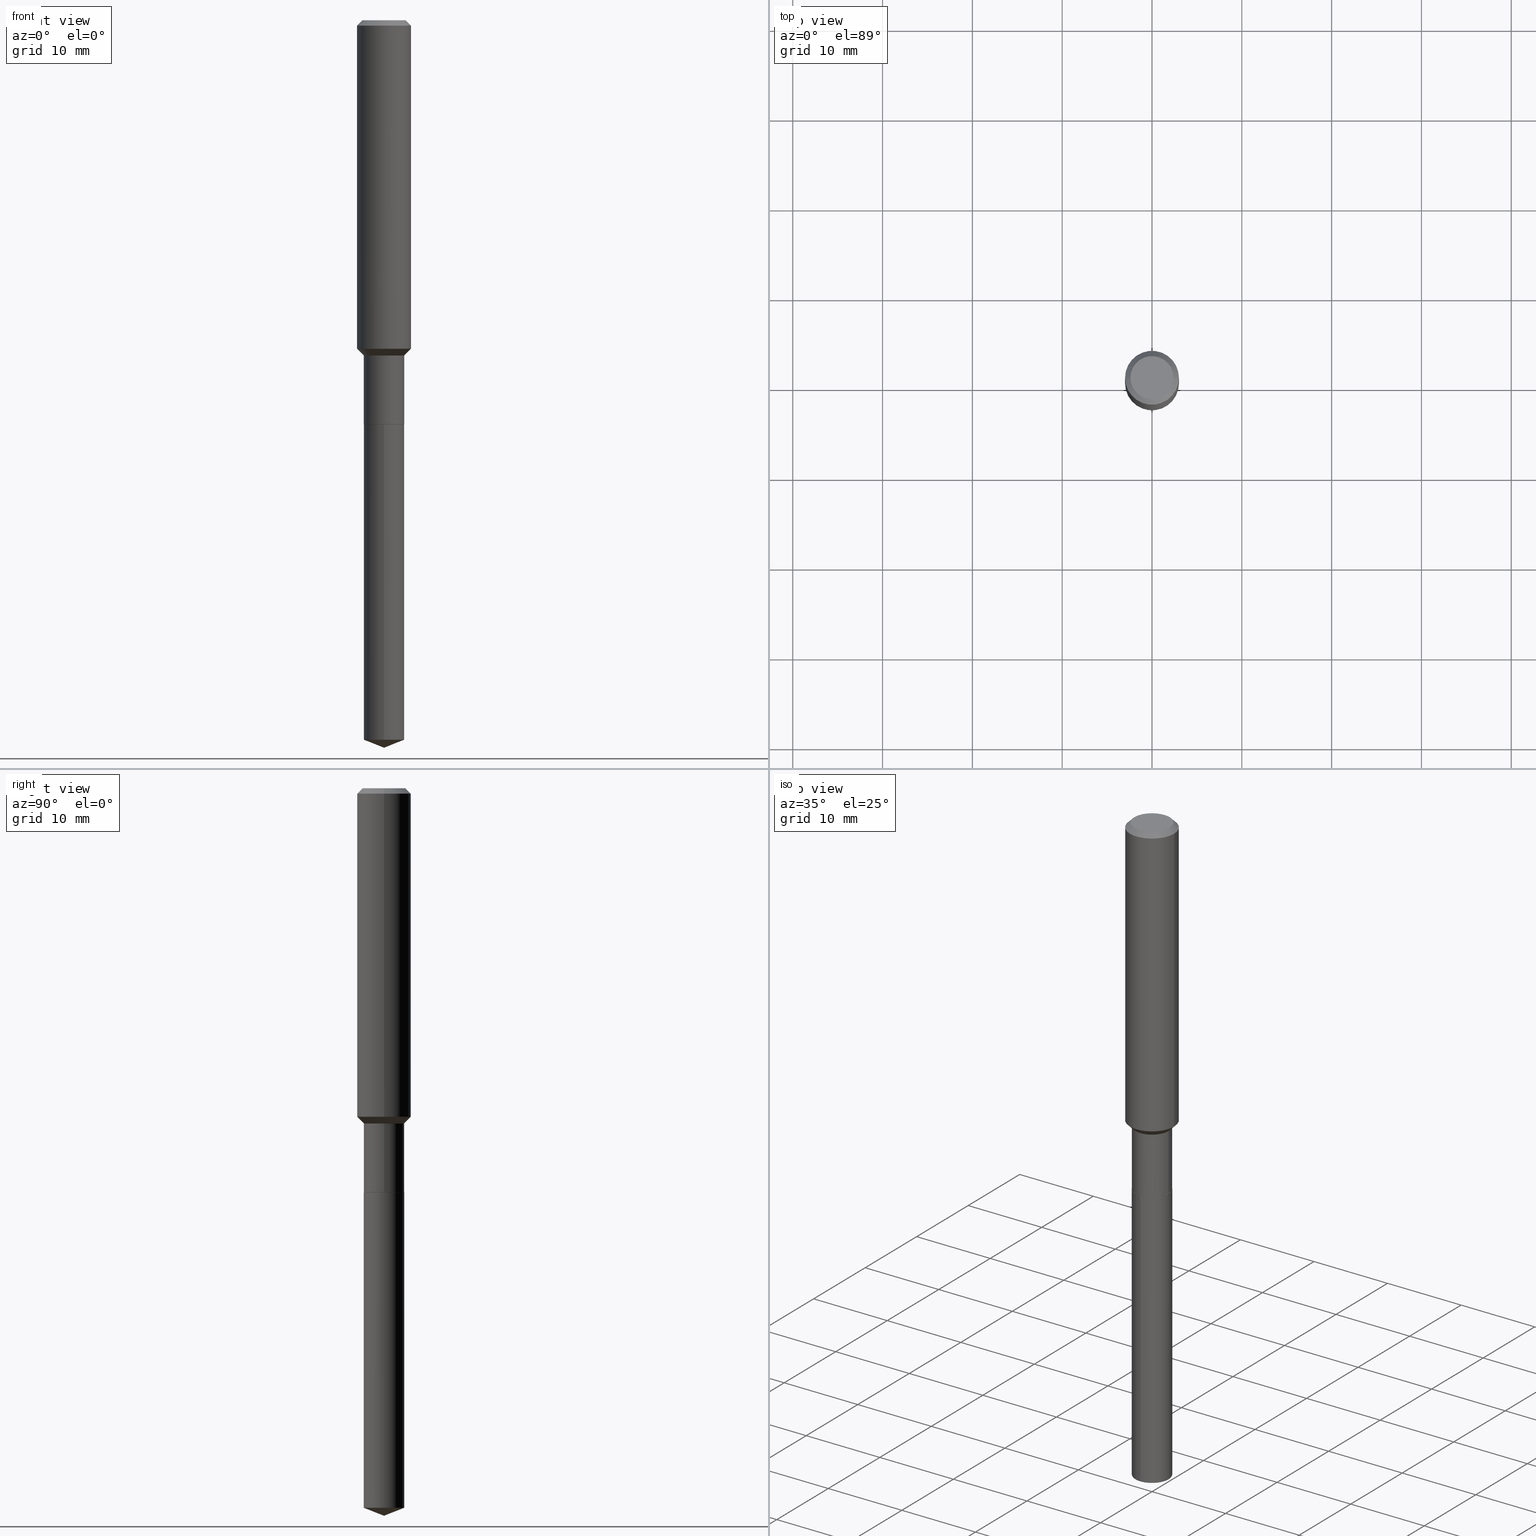
[diagram: canonical four-view strip — front | top / right | iso, engineering-drawing reading convention]
A machine part, canonical four-view strip (front | top / right | iso — engineering-drawing reading convention). The complete STEP part file that produces these views, byte-faithful:
ISO-10303-21;
HEADER;
FILE_DESCRIPTION (( 'STEP AP203' ),
    '1' );
FILE_NAME ('66621.STEP',
    '2024-04-25T02:12:49',
    ( '' ),
    ( '' ),
    'SwSTEP 2.0',
    'SolidWorks 2023',
    '' );
FILE_SCHEMA (( 'CONFIG_CONTROL_DESIGN' ));
ENDSEC;

DATA;
#1 = DIRECTION ( 'NONE',  ( -1.000000000000000000, 6.982962677686266711E-15, 0.000000000000000000 ) ) ;
#2 = LOCAL_TIME ( 22, 12, 49.00000000000000000, #15 ) ;
#3 = AXIS2_PLACEMENT_3D ( 'NONE', #20, #477, #321 ) ;
#4 = CIRCLE ( 'NONE', #142, 0.1181000000000001632 ) ;
#5 = ORIENTED_EDGE ( 'NONE', *, *, #447, .F. ) ;
#6 = DIRECTION ( 'NONE',  ( -2.445468806185136597E-29, 3.491481338843145583E-15, 1.000000000000000000 ) ) ;
#7 = ADVANCED_FACE ( 'NONE', ( #397 ), #177, .F. ) ;
#8 = AXIS2_PLACEMENT_3D ( 'NONE', #165, #414, #82 ) ;
#9 = APPROVAL_STATUS ( 'not_yet_approved' ) ;
#10 =( LENGTH_UNIT ( ) NAMED_UNIT ( * ) SI_UNIT ( $, .METRE. ) );
#11 = VERTEX_POINT ( 'NONE', #139 ) ;
#12 = CARTESIAN_POINT ( 'NONE',  ( -6.186904932429597627E-16, -0.08860000000000617382, -1.771700000000000053 ) ) ;
#13 = VERTEX_POINT ( 'NONE', #137 ) ;
#14 = DATE_AND_TIME ( #304, #269 ) ;
#15 = COORDINATED_UNIVERSAL_TIME_OFFSET ( 5, 0, .BEHIND. ) ;
#16 = FACE_OUTER_BOUND ( 'NONE', #478, .T. ) ;
#17 = VECTOR ( 'NONE', #431, 39.37007874015748143 ) ;
#18 = CYLINDRICAL_SURFACE ( 'NONE', #186, 0.1181000000000000799 ) ;
#19 = CIRCLE ( 'NONE', #453, 0.08859999999999999820 ) ;
#20 = CARTESIAN_POINT ( 'NONE',  ( 3.593616410689059139E-29, -5.130731827430003304E-15, -1.469500000000000250 ) ) ;
#21 = ORIENTED_EDGE ( 'NONE', *, *, #392, .F. ) ;
#22 = DIRECTION ( 'NONE',  ( -2.445468806185136597E-29, 3.491481338843145583E-15, 1.000000000000000000 ) ) ;
#23 = ADVANCED_FACE ( 'NONE', ( #282 ), #324, .T. ) ;
#24 = CARTESIAN_POINT ( 'NONE',  ( -0.1181000000000000799, 8.391509709326788873E-16, -5.809262341591047988E-30 ) ) ;
#25 = DIRECTION ( 'NONE',  ( -2.438088387897960049E-29, 3.491481338843145188E-15, 1.000000000000000000 ) ) ;
#26 = AXIS2_PLACEMENT_3D ( 'NONE', #482, #249, #257 ) ;
#27 = AXIS2_PLACEMENT_3D ( 'NONE', #436, #65, #212 ) ;
#28 = APPROVAL ( #489, 'UNSPECIFIED' ) ;
#29 = LOCAL_TIME ( 22, 12, 49.00000000000000000, #319 ) ;
#30 = ORIENTED_EDGE ( 'NONE', *, *, #455, .F. ) ;
#31 = ADVANCED_FACE ( 'NONE', ( #458 ), #151, .T. ) ;
#32 = DATE_AND_TIME ( #39, #470 ) ;
#33 = VERTEX_POINT ( 'NONE', #147 ) ;
#34 = CONICAL_SURFACE ( 'NONE', #295, 0.1180999999999999966, 0.7853981633974460586 ) ;
#35 = CARTESIAN_POINT ( 'NONE',  ( 5.776197320209327532E-31, -8.246878922347559293E-17, -0.02362000000000014088 ) ) ;
#36 = CARTESIAN_POINT ( 'NONE',  ( 0.000000000000000000, 0.000000000000000000, 0.000000000000000000 ) ) ;
#37 = CARTESIAN_POINT ( 'NONE',  ( -0.08809999999999999776, -5.557220110649644295E-15, -1.771700000000000719 ) ) ;
#38 = EDGE_CURVE ( 'NONE', #404, #202, #233, .T. ) ;
#39 = CALENDAR_DATE ( 2024, 24, 4 ) ;
#40 = ORGANIZATION ( 'UNSPECIFIED', 'UNSPECIFIED', '' ) ;
#41 = CIRCLE ( 'NONE', #452, 0.08859999999999999820 ) ;
#42 = DIRECTION ( 'NONE',  ( 2.445468806185136597E-29, -3.491481338843145583E-15, -1.000000000000000000 ) ) ;
#43 = DESIGN_CONTEXT ( 'detailed design', #57, 'design' ) ;
#44 = ADVANCED_FACE ( 'NONE', ( #410 ), #375, .T. ) ;
#45 = APPROVAL_DATE_TIME ( #32, #28 ) ;
#46 = CYLINDRICAL_SURFACE ( 'NONE', #123, 0.08859999999999998432 ) ;
#47 = ORIENTED_EDGE ( 'NONE', *, *, #392, .T. ) ;
#48 = DIRECTION ( 'NONE',  ( -2.445468806185136597E-29, 3.491481338843145583E-15, 1.000000000000000000 ) ) ;
#49 = AXIS2_PLACEMENT_3D ( 'NONE', #298, #292, #450 ) ;
#50 = CONICAL_SURFACE ( 'NONE', #191, 0.08809999999999999776, 0.7853981633972775267 ) ;
#51 = ORIENTED_EDGE ( 'NONE', *, *, #160, .T. ) ;
#52 = CARTESIAN_POINT ( 'NONE',  ( 4.716267017698007905E-46, -6.733579360998555036E-32, -1.928573779297252010E-17 ) ) ;
#53 = EDGE_CURVE ( 'NONE', #13, #439, #99, .T. ) ;
#54 = LINE ( 'NONE', #330, #336 ) ;
#55 = EDGE_LOOP ( 'NONE', ( #121, #51, #155, #232 ) ) ;
#56 = DIRECTION ( 'NONE',  ( 6.982962677686265922E-15, 1.000000000000000000, -3.491438453366782686E-15 ) ) ;
#57 = APPLICATION_CONTEXT ( 'configuration controlled 3d designs of mechanical parts and assemblies' ) ;
#58 = CARTESIAN_POINT ( 'NONE',  ( 3.593616410689059139E-29, -5.130731827430003304E-15, -1.469500000000000250 ) ) ;
#59 = CONICAL_SURFACE ( 'NONE', #178, 0.08859999999999995657, 0.7853981633974509435 ) ;
#60 = DIRECTION ( 'NONE',  ( -2.445468806185136877E-29, 3.491481338843145188E-15, 1.000000000000000000 ) ) ;
#61 = DATE_TIME_ROLE ( 'classification_date' ) ;
#62 = SECURITY_CLASSIFICATION_LEVEL ( 'unclassified' ) ;
#63 = ADVANCED_FACE ( 'NONE', ( #484 ), #107, .T. ) ;
#64 = DIRECTION ( 'NONE',  ( 2.438088387897960049E-29, -3.491481338843145188E-15, -1.000000000000000000 ) ) ;
#65 = DIRECTION ( 'NONE',  ( -2.445468806185136597E-29, 3.491481338843145583E-15, 1.000000000000000000 ) ) ;
#66 = ORIENTED_EDGE ( 'NONE', *, *, #421, .F. ) ;
#67 = CARTESIAN_POINT ( 'NONE',  ( 6.295408638835256658E-16, 0.08859999999998896536, -3.154099531860517391 ) ) ;
#68 = APPROVAL ( #9, 'UNSPECIFIED' ) ;
#69 = ORIENTED_EDGE ( 'NONE', *, *, #228, .T. ) ;
#70 = AXIS2_PLACEMENT_3D ( 'NONE', #171, #25, #280 ) ;
#71 = ADVANCED_FACE ( 'NONE', ( #213 ), #18, .T. ) ;
#72 = ORIENTED_EDGE ( 'NONE', *, *, #486, .F. ) ;
#73 = EDGE_CURVE ( 'NONE', #439, #11, #219, .T. ) ;
#74 = ORIENTED_EDGE ( 'NONE', *, *, #53, .F. ) ;
#75 = FACE_OUTER_BOUND ( 'NONE', #382, .T. ) ;
#76 = LENGTH_MEASURE_WITH_UNIT ( LENGTH_MEASURE( 0.02539999999999999897 ), #10 );
#77 = CYLINDRICAL_SURFACE ( 'NONE', #303, 0.08859999999999999820 ) ;
#78 = CIRCLE ( 'NONE', #27, 0.08809999999999999776 ) ;
#79 = ORIENTED_EDGE ( 'NONE', *, *, #466, .T. ) ;
#80 =( NAMED_UNIT ( * ) SI_UNIT ( $, .STERADIAN. ) SOLID_ANGLE_UNIT ( ) );
#81 = CARTESIAN_POINT ( 'NONE',  ( -6.186904932429258417E-16, -0.08860000000001097553, -3.154099531860516059 ) ) ;
#82 = DIRECTION ( 'NONE',  ( 1.000000000000000000, -6.982962677686266711E-15, 0.000000000000000000 ) ) ;
#83 = EDGE_CURVE ( 'NONE', #390, #11, #345, .T. ) ;
#84 = AXIS2_PLACEMENT_3D ( 'NONE', #104, #64, #174 ) ;
#85 = PERSON_AND_ORGANIZATION_ROLE ( 'design_owner' ) ;
#86 = PRODUCT_DEFINITION ( 'UNKNOWN', '', #443, #43 ) ;
#87 = ORIENTED_EDGE ( 'NONE', *, *, #203, .T. ) ;
#88 = ORIENTED_EDGE ( 'NONE', *, *, #449, .T. ) ;
#89 = AXIS2_PLACEMENT_3D ( 'NONE', #36, #289, #277 ) ;
#90 = SECURITY_CLASSIFICATION ( '', '', #62 ) ;
#91 = EDGE_CURVE ( 'NONE', #162, #311, #469, .T. ) ;
#92 = PERSON_AND_ORGANIZATION ( #385, #40 ) ;
#93 = CARTESIAN_POINT ( 'NONE',  ( -6.186904932429597627E-16, -0.08860000000000617382, -1.771700000000000053 ) ) ;
#94 = CARTESIAN_POINT ( 'NONE',  ( 0.08859999999999998432, -6.186904932430030515E-16, 4.320292623355198064E-30 ) ) ;
#95 = EDGE_LOOP ( 'NONE', ( #360, #461, #259 ) ) ;
#96 = DIRECTION ( 'NONE',  ( -2.445498752953222356E-29, 3.491438453366782686E-15, 1.000000000000000000 ) ) ;
#97 = CARTESIAN_POINT ( 'NONE',  ( 0.000000000000000000, 0.000000000000000000, 0.000000000000000000 ) ) ;
#98 = CARTESIAN_POINT ( 'NONE',  ( 0.000000000000000000, 0.000000000000000000, 0.000000000000000000 ) ) ;
#99 = LINE ( 'NONE', #448, #184 ) ;
#100 = VERTEX_POINT ( 'NONE', #314 ) ;
#101 = LINE ( 'NONE', #93, #362 ) ;
#102 = ORIENTED_EDGE ( 'NONE', *, *, #149, .F. ) ;
#103 = PLANE ( 'NONE',  #70 ) ;
#104 = CARTESIAN_POINT ( 'NONE',  ( 2.358133508849003952E-46, -3.366789680499277518E-32, -9.642868896486260050E-18 ) ) ;
#105 = ORIENTED_EDGE ( 'NONE', *, *, #83, .F. ) ;
#106 =( GEOMETRIC_REPRESENTATION_CONTEXT ( 3 ) GLOBAL_UNCERTAINTY_ASSIGNED_CONTEXT ( ( #206 ) ) GLOBAL_UNIT_ASSIGNED_CONTEXT ( ( #329, #374, #80 ) ) REPRESENTATION_CONTEXT ( 'NONE', 'WORKASPACE' ) );
#107 = CONICAL_SURFACE ( 'NONE', #159, 99.94676754583984746, 1.195550537616119069 ) ;
#108 = CC_DESIGN_SECURITY_CLASSIFICATION ( #90, ( #443 ) ) ;
#109 = DIRECTION ( 'NONE',  ( -2.445468806185136597E-29, 3.491481338843145583E-15, 1.000000000000000000 ) ) ;
#110 = CARTESIAN_POINT ( 'NONE',  ( 3.593616410689059139E-29, -5.130731827430003304E-15, -1.469500000000000250 ) ) ;
#111 = ADVANCED_FACE ( 'NONE', ( #457 ), #34, .T. ) ;
#112 = ORIENTED_EDGE ( 'NONE', *, *, #118, .T. ) ;
#113 = DIRECTION ( 'NONE',  ( 1.000000000000000000, -6.982962677686261189E-15, 0.000000000000000000 ) ) ;
#114 = VECTOR ( 'NONE', #377, 39.37007874015748143 ) ;
#115 = PERSON_AND_ORGANIZATION_ROLE ( 'creator' ) ;
#116 = CC_DESIGN_PERSON_AND_ORGANIZATION_ASSIGNMENT ( #344, #437, ( #443 ) ) ;
#117 = ORIENTED_EDGE ( 'NONE', *, *, #286, .T. ) ;
#118 = EDGE_CURVE ( 'NONE', #266, #475, #194, .T. ) ;
#119 = CLOSED_SHELL ( 'NONE', ( #23, #31, #63, #192, #302 ) ) ;
#120 = CONICAL_SURFACE ( 'NONE', #222, 0.1180999999999999966, 0.7853981633974460586 ) ;
#121 = ORIENTED_EDGE ( 'NONE', *, *, #228, .F. ) ;
#122 = APPLICATION_CONTEXT ( 'configuration controlled 3d designs of mechanical parts and assemblies' ) ;
#123 = AXIS2_PLACEMENT_3D ( 'NONE', #460, #230, #400 ) ;
#124 = DIRECTION ( 'NONE',  ( -2.445468806185136597E-29, 3.491481338843145583E-15, 1.000000000000000000 ) ) ;
#125 = ORIENTED_EDGE ( 'NONE', *, *, #415, .T. ) ;
#126 = CARTESIAN_POINT ( 'NONE',  ( 4.716267017698007905E-46, -6.733579360998555036E-32, -1.928573779297252010E-17 ) ) ;
#127 = DIRECTION ( 'NONE',  ( -6.982962677686265133E-15, -1.000000000000000000, 3.083349879982238325E-15 ) ) ;
#128 = CALENDAR_DATE ( 2024, 24, 4 ) ;
#129 = LINE ( 'NONE', #430, #234 ) ;
#130 = EDGE_CURVE ( 'NONE', #435, #279, #54, .T. ) ;
#131 = CALENDAR_DATE ( 2024, 24, 4 ) ;
#132 = DIRECTION ( 'NONE',  ( 1.000000000000000000, -6.982962677686269077E-15, 0.000000000000000000 ) ) ;
#133 = ORIENTED_EDGE ( 'NONE', *, *, #160, .F. ) ;
#134 = DIRECTION ( 'NONE',  ( -2.445498752953222356E-29, 3.491438453366782686E-15, 1.000000000000000000 ) ) ;
#135 = CARTESIAN_POINT ( 'NONE',  ( 0.08859999999999995657, -5.749422320673005468E-15, -1.469500000000000250 ) ) ;
#136 = PERSON_AND_ORGANIZATION ( #385, #40 ) ;
#137 = CARTESIAN_POINT ( 'NONE',  ( 0.08809999999999999776, -6.801056499932562605E-15, -1.771700000000000719 ) ) ;
#138 = CARTESIAN_POINT ( 'NONE',  ( 0.09447999999999998066, -7.704367267948738690E-16, -1.928573779296752193E-17 ) ) ;
#139 = CARTESIAN_POINT ( 'NONE',  ( -0.08859999999999999820, -5.027880923511043773E-15, -1.771200000000000552 ) ) ;
#140 = DIRECTION ( 'NONE',  ( -2.445498752953222356E-29, 3.491438453366782686E-15, 1.000000000000000000 ) ) ;
#141 = ORIENTED_EDGE ( 'NONE', *, *, #83, .T. ) ;
#142 = AXIS2_PLACEMENT_3D ( 'NONE', #346, #342, #462 ) ;
#143 = FACE_OUTER_BOUND ( 'NONE', #467, .T. ) ;
#144 = DIRECTION ( 'NONE',  ( 1.000000000000000000, 0.000000000000000000, 0.000000000000000000 ) ) ;
#145 = FACE_OUTER_BOUND ( 'NONE', #483, .T. ) ;
#146 = DIRECTION ( 'NONE',  ( -2.445498752953222356E-29, 3.491438453366782686E-15, 1.000000000000000000 ) ) ;
#147 = CARTESIAN_POINT ( 'NONE',  ( 6.295408638835258631E-16, 0.08859999999999380871, -1.771700000000000719 ) ) ;
#148 = EDGE_LOOP ( 'NONE', ( #183, #87, #79, #224 ) ) ;
#149 = EDGE_CURVE ( 'NONE', #202, #33, #367, .T. ) ;
#150 = AXIS2_PLACEMENT_3D ( 'NONE', #35, #190, #158 ) ;
#151 = CONICAL_SURFACE ( 'NONE', #417, 99.94676754583984746, 1.195550537616119069 ) ;
#152 = CARTESIAN_POINT ( 'NONE',  ( -8.848083599624647937E-28, 1.263239336174787439E-13, 36.18107874015748138 ) ) ;
#153 = AXIS2_PLACEMENT_3D ( 'NONE', #52, #124, #310 ) ;
#154 = APPLICATION_PROTOCOL_DEFINITION ( 'international standard', 'config_control_design', 1994, #122 ) ;
#155 = ORIENTED_EDGE ( 'NONE', *, *, #91, .T. ) ;
#156 = DIRECTION ( 'NONE',  ( 1.000000000000000000, -6.982962677686264344E-15, 0.000000000000000000 ) ) ;
#157 = CARTESIAN_POINT ( 'NONE',  ( -0.08859999999999995657, -4.501190963546554453E-15, -1.469500000000000250 ) ) ;
#158 = DIRECTION ( 'NONE',  ( 1.000000000000000000, -6.982962677686266711E-15, 0.000000000000000000 ) ) ;
#159 = AXIS2_PLACEMENT_3D ( 'NONE', #152, #140, #250 ) ;
#160 = EDGE_CURVE ( 'NONE', #245, #162, #334, .T. ) ;
#161 = FACE_OUTER_BOUND ( 'NONE', #148, .T. ) ;
#162 = VERTEX_POINT ( 'NONE', #253 ) ;
#163 = DIRECTION ( 'NONE',  ( 1.000000000000000000, -6.982962677686261189E-15, 0.000000000000000000 ) ) ;
#164 = APPROVAL_PERSON_ORGANIZATION ( #92, #231, #199 ) ;
#165 = CARTESIAN_POINT ( 'NONE',  ( 5.776197320209327532E-31, -8.246878922347559293E-17, -0.02362000000000014088 ) ) ;
#166 = AXIS2_PLACEMENT_3D ( 'NONE', #58, #472, #163 ) ;
#167 = ADVANCED_FACE ( 'NONE', ( #143 ), #120, .T. ) ;
#168 = CARTESIAN_POINT ( 'NONE',  ( 0.08859999999999999820, -6.802802240601984897E-15, -1.771200000000000552 ) ) ;
#169 = VECTOR ( 'NONE', #185, 39.37007874015748143 ) ;
#170 = ORIENTED_EDGE ( 'NONE', *, *, #294, .T. ) ;
#171 = CARTESIAN_POINT ( 'NONE',  ( 4.963550481035897512E-30, -1.167963171092849137E-14, -1.771700000000000719 ) ) ;
#172 = EDGE_LOOP ( 'NONE', ( #105, #454, #325, #451 ) ) ;
#173 = FACE_OUTER_BOUND ( 'NONE', #172, .T. ) ;
#174 = DIRECTION ( 'NONE',  ( -1.000000000000000000, 6.982962677686265922E-15, -4.876176775795935793E-29 ) ) ;
#175 = DIRECTION ( 'NONE',  ( -6.982962677686265133E-15, -1.000000000000000000, 6.166699759964476650E-15 ) ) ;
#176 = DIRECTION ( 'NONE',  ( 6.611014441532066589E-15, 0.9304175679820270162, 0.3665012267242909183 ) ) ;
#177 = PLANE ( 'NONE',  #84 ) ;
#178 = AXIS2_PLACEMENT_3D ( 'NONE', #110, #6, #113 ) ;
#179 = DIRECTION ( 'NONE',  ( 2.445498752953222076E-29, -3.491438453366782686E-15, -1.000000000000000000 ) ) ;
#180 = ORIENTED_EDGE ( 'NONE', *, *, #332, .F. ) ;
#181 = CARTESIAN_POINT ( 'NONE',  ( 6.295408638834919420E-16, 0.08859999999999380871, -1.771700000000000719 ) ) ;
#182 = APPROVAL_ROLE ( '' ) ;
#183 = ORIENTED_EDGE ( 'NONE', *, *, #415, .F. ) ;
#184 = VECTOR ( 'NONE', #256, 39.37007874015748143 ) ;
#185 = DIRECTION ( 'NONE',  ( -2.445468806185136877E-29, 3.491481338843145188E-15, 1.000000000000000000 ) ) ;
#186 = AXIS2_PLACEMENT_3D ( 'NONE', #97, #109, #373 ) ;
#187 = DIRECTION ( 'NONE',  ( -2.445468806185136597E-29, 3.491481338843145583E-15, 1.000000000000000000 ) ) ;
#188 = ORIENTED_EDGE ( 'NONE', *, *, #73, .T. ) ;
#189 = COORDINATED_UNIVERSAL_TIME_OFFSET ( 5, 0, .BEHIND. ) ;
#190 = DIRECTION ( 'NONE',  ( -2.445468806185136597E-29, 3.491481338843145583E-15, 1.000000000000000000 ) ) ;
#191 = AXIS2_PLACEMENT_3D ( 'NONE', #331, #223, #156 ) ;
#192 = ADVANCED_FACE ( 'NONE', ( #145 ), #77, .T. ) ;
#193 = APPLICATION_PROTOCOL_DEFINITION ( 'international standard', 'config_control_design', 1994, #57 ) ;
#194 = LINE ( 'NONE', #157, #241 ) ;
#195 = DATE_TIME_ROLE ( 'creation_date' ) ;
#196 = ADVANCED_FACE ( 'NONE', ( #16 ), #103, .F. ) ;
#197 = AXIS2_PLACEMENT_3D ( 'NONE', #468, #271, #208 ) ;
#198 = AXIS2_PLACEMENT_3D ( 'NONE', #98, #407, #481 ) ;
#199 = APPROVAL_ROLE ( '' ) ;
#200 = VERTEX_POINT ( 'NONE', #12 ) ;
#201 = CC_DESIGN_PERSON_AND_ORGANIZATION_ASSIGNMENT ( #136, #434, ( #90 ) ) ;
#202 = VERTEX_POINT ( 'NONE', #67 ) ;
#203 = EDGE_CURVE ( 'NONE', #11, #439, #227, .T. ) ;
#204 = ORIENTED_EDGE ( 'NONE', *, *, #322, .T. ) ;
#205 = CARTESIAN_POINT ( 'NONE',  ( -0.1180999999999999966, -1.715949987646123475E-15, -0.02362000000000014088 ) ) ;
#206 = UNCERTAINTY_MEASURE_WITH_UNIT (LENGTH_MEASURE( 1.000000000000000082E-05 ), #329, 'distance_accuracy_value', 'NONE');
#207 = AXIS2_PLACEMENT_3D ( 'NONE', #391, #240, #426 ) ;
#208 = DIRECTION ( 'NONE',  ( 1.000000000000000000, -6.982962677686263555E-15, 0.000000000000000000 ) ) ;
#209 = LINE ( 'NONE', #356, #290 ) ;
#210 = PERSON_AND_ORGANIZATION ( #385, #40 ) ;
#211 = EDGE_LOOP ( 'NONE', ( #485, #293, #429, #337 ) ) ;
#212 = DIRECTION ( 'NONE',  ( 1.000000000000000000, -6.982962677686264344E-15, 0.000000000000000000 ) ) ;
#213 = FACE_OUTER_BOUND ( 'NONE', #242, .T. ) ;
#214 = FACE_OUTER_BOUND ( 'NONE', #368, .T. ) ;
#215 = ORIENTED_EDGE ( 'NONE', *, *, #455, .T. ) ;
#216 = FACE_OUTER_BOUND ( 'NONE', #442, .T. ) ;
#217 = ADVANCED_FACE ( 'NONE', ( #276 ), #268, .T. ) ;
#218 = CC_DESIGN_APPROVAL ( #68, ( #443 ) ) ;
#219 = CIRCLE ( 'NONE', #349, 0.08859999999999999820 ) ;
#220 = ORIENTED_EDGE ( 'NONE', *, *, #447, .T. ) ;
#221 = DIRECTION ( 'NONE',  ( -6.982962677686265922E-15, -1.000000000000000000, 3.498627837350008561E-15 ) ) ;
#222 = AXIS2_PLACEMENT_3D ( 'NONE', #445, #369, #1 ) ;
#223 = DIRECTION ( 'NONE',  ( -2.445468806185136597E-29, 3.491481338843145583E-15, 1.000000000000000000 ) ) ;
#224 = ORIENTED_EDGE ( 'NONE', *, *, #318, .F. ) ;
#225 = FACE_OUTER_BOUND ( 'NONE', #211, .T. ) ;
#226 = DIRECTION ( 'NONE',  ( 1.000000000000000000, -6.982962677686261189E-15, 0.000000000000000000 ) ) ;
#227 = CIRCLE ( 'NONE', #381, 0.08859999999999999820 ) ;
#228 = EDGE_CURVE ( 'NONE', #245, #320, #418, .T. ) ;
#229 = DATE_AND_TIME ( #128, #2 ) ;
#230 = DIRECTION ( 'NONE',  ( -2.445468806185136597E-29, 3.491481338843145583E-15, 1.000000000000000000 ) ) ;
#231 = APPROVAL ( #384, 'UNSPECIFIED' ) ;
#232 = ORIENTED_EDGE ( 'NONE', *, *, #449, .F. ) ;
#233 = CIRCLE ( 'NONE', #49, 0.08859999999999999820 ) ;
#234 = VECTOR ( 'NONE', #433, 39.37007874015748143 ) ;
#235 = VECTOR ( 'NONE', #471, 39.37007874015748143 ) ;
#236 = ORIENTED_EDGE ( 'NONE', *, *, #254, .F. ) ;
#237 = DIMENSIONAL_EXPONENTS ( 1.000000000000000000, 0.000000000000000000, 0.000000000000000000, 0.000000000000000000, 0.000000000000000000, 0.000000000000000000, 0.000000000000000000 ) ;
#238 = DIRECTION ( 'NONE',  ( 1.000000000000000000, -6.982962677686267499E-15, 4.875432709231658792E-29 ) ) ;
#239 = CARTESIAN_POINT ( 'NONE',  ( -0.08809999999999999776, -5.559869337823754707E-15, -1.771700000000000719 ) ) ;
#240 = DIRECTION ( 'NONE',  ( -2.445468806185136597E-29, 3.491481338843145583E-15, 1.000000000000000000 ) ) ;
#241 = VECTOR ( 'NONE', #261, 39.37007874015748143 ) ;
#242 = EDGE_LOOP ( 'NONE', ( #394, #357, #343, #21 ) ) ;
#243 = CARTESIAN_POINT ( 'NONE',  ( 4.332637083918206987E-29, -6.185857488028401870E-15, -1.771700000000000497 ) ) ;
#244 = EDGE_CURVE ( 'NONE', #100, #404, #129, .T. ) ;
#245 = VERTEX_POINT ( 'NONE', #138 ) ;
#246 = PRODUCT_DEFINITION_SHAPE ( 'NONE', 'NONE',  #86 ) ;
#247 = DIRECTION ( 'NONE',  ( 1.000000000000000000, -6.982962677686264344E-15, 0.000000000000000000 ) ) ;
#248 = LINE ( 'NONE', #24, #17 ) ;
#249 = DIRECTION ( 'NONE',  ( -2.445498752953222356E-29, 3.491438453366782686E-15, 1.000000000000000000 ) ) ;
#250 = DIRECTION ( 'NONE',  ( -6.982962677686265922E-15, -1.000000000000000000, 3.498627837350008561E-15 ) ) ;
#251 = VECTOR ( 'NONE', #315, 39.37007874015748143 ) ;
#252 = EDGE_LOOP ( 'NONE', ( #265, #432, #30, #419 ) ) ;
#253 = CARTESIAN_POINT ( 'NONE',  ( 0.1180999999999999966, -9.071566814582237199E-16, -0.02362000000000014088 ) ) ;
#254 = EDGE_CURVE ( 'NONE', #202, #404, #41, .T. ) ;
#255 = CC_DESIGN_PERSON_AND_ORGANIZATION_ASSIGNMENT ( #440, #85, ( #399 ) ) ;
#256 = DIRECTION ( 'NONE',  ( 0.7071067811864267805, -2.468850131080992517E-15, 0.7071067811866682540 ) ) ;
#257 = DIRECTION ( 'NONE',  ( -6.982962677686265133E-15, -1.000000000000000000, 3.083349879982238325E-15 ) ) ;
#258 = CLOSED_SHELL ( 'NONE', ( #405, #111, #44, #217, #353, #338, #387, #71, #167, #7, #196, #272 ) ) ;
#259 = ORIENTED_EDGE ( 'NONE', *, *, #38, .F. ) ;
#260 = AXIS2_PLACEMENT_3D ( 'NONE', #428, #354, #127 ) ;
#261 = DIRECTION ( 'NONE',  ( -0.7071067811865493491, 7.493145998870360471E-15, 0.7071067811865456854 ) ) ;
#262 = CIRCLE ( 'NONE', #150, 0.1180999999999999966 ) ;
#263 = ORIENTED_EDGE ( 'NONE', *, *, #372, .F. ) ;
#264 = SHAPE_DEFINITION_REPRESENTATION ( #246, #409 ) ;
#265 = ORIENTED_EDGE ( 'NONE', *, *, #38, .T. ) ;
#266 = VERTEX_POINT ( 'NONE', #317 ) ;
#267 = CARTESIAN_POINT ( 'NONE',  ( 4.332637083918206987E-29, -6.185857488028401870E-15, -1.771700000000000497 ) ) ;
#268 = CONICAL_SURFACE ( 'NONE', #166, 0.08859999999999995657, 0.7853981633974509435 ) ;
#269 = LOCAL_TIME ( 22, 12, 49.00000000000000000, #189 ) ;
#270 = CARTESIAN_POINT ( 'NONE',  ( -0.1180999999999999966, 7.422191030112725094E-16, -0.02362000000000014088 ) ) ;
#271 = DIRECTION ( 'NONE',  ( -2.445468806185136597E-29, 3.491481338843145583E-15, 1.000000000000000000 ) ) ;
#272 = ADVANCED_FACE ( 'NONE', ( #173 ), #396, .T. ) ;
#273 = LINE ( 'NONE', #473, #388 ) ;
#274 = LINE ( 'NONE', #94, #251 ) ;
#275 = ORIENTED_EDGE ( 'NONE', *, *, #466, .F. ) ;
#276 = FACE_OUTER_BOUND ( 'NONE', #401, .T. ) ;
#277 = DIRECTION ( 'NONE',  ( 1.000000000000000000, -6.982962677686266711E-15, 4.876176775795936353E-29 ) ) ;
#278 = DATE_AND_TIME ( #351, #29 ) ;
#279 = VERTEX_POINT ( 'NONE', #395 ) ;
#280 = DIRECTION ( 'NONE',  ( 1.000000000000000000, -6.982962677686265922E-15, 4.876176775795935793E-29 ) ) ;
#281 = AXIS2_PLACEMENT_3D ( 'NONE', #126, #307, #238 ) ;
#282 = FACE_OUTER_BOUND ( 'NONE', #252, .T. ) ;
#283 = CARTESIAN_POINT ( 'NONE',  ( -0.09447999999999998066, 7.009847083995354710E-16, -1.928573779297727792E-17 ) ) ;
#284 = ORIENTED_EDGE ( 'NONE', *, *, #421, .T. ) ;
#285 = ORIENTED_EDGE ( 'NONE', *, *, #379, .F. ) ;
#286 = EDGE_CURVE ( 'NONE', #279, #475, #444, .T. ) ;
#287 = DIRECTION ( 'NONE',  ( 0.000000000000000000, 0.000000000000000000, 1.000000000000000000 ) ) ;
#288 = AXIS2_PLACEMENT_3D ( 'NONE', #305, #48, #226 ) ;
#289 = DIRECTION ( 'NONE',  ( -2.445468806185136597E-29, 3.491481338843145583E-15, 1.000000000000000000 ) ) ;
#290 = VECTOR ( 'NONE', #176, 39.37007874015748143 ) ;
#291 = APPROVAL_ROLE ( '' ) ;
#292 = DIRECTION ( 'NONE',  ( -2.445498752953222356E-29, 3.491438453366782686E-15, 1.000000000000000000 ) ) ;
#293 = ORIENTED_EDGE ( 'NONE', *, *, #318, .T. ) ;
#294 = EDGE_CURVE ( 'NONE', #404, #200, #101, .T. ) ;
#295 = AXIS2_PLACEMENT_3D ( 'NONE', #383, #42, #424 ) ;
#296 = CARTESIAN_POINT ( 'NONE',  ( 0.1180999999999999966, -8.926936027602933910E-16, -0.02362000000000014088 ) ) ;
#297 = CC_DESIGN_APPROVAL ( #231, ( #86 ) ) ;
#298 = CARTESIAN_POINT ( 'NONE',  ( 7.713293415166218744E-29, -1.101242037148244784E-14, -3.154099531860516947 ) ) ;
#299 = MECHANICAL_CONTEXT ( 'NONE', #122, 'mechanical' ) ;
#300 = ORIENTED_EDGE ( 'NONE', *, *, #244, .T. ) ;
#301 = PERSON_AND_ORGANIZATION ( #385, #40 ) ;
#302 = ADVANCED_FACE ( 'NONE', ( #216 ), #398, .F. ) ;
#303 = AXIS2_PLACEMENT_3D ( 'NONE', #267, #134, #361 ) ;
#304 = CALENDAR_DATE ( 2024, 24, 4 ) ;
#305 = CARTESIAN_POINT ( 'NONE',  ( 3.593616410689059139E-29, -5.130731827430003304E-15, -1.469500000000000250 ) ) ;
#306 = ORIENTED_EDGE ( 'NONE', *, *, #486, .T. ) ;
#307 = DIRECTION ( 'NONE',  ( -2.445468806185136597E-29, 3.491481338843145583E-15, 1.000000000000000000 ) ) ;
#308 = APPROVAL_PERSON_ORGANIZATION ( #210, #28, #291 ) ;
#309 = CIRCLE ( 'NONE', #3, 0.08859999999999995657 ) ;
#310 = DIRECTION ( 'NONE',  ( 1.000000000000000000, -6.982962677686267499E-15, 4.875432709231658792E-29 ) ) ;
#311 = VERTEX_POINT ( 'NONE', #205 ) ;
#312 = DIRECTION ( 'NONE',  ( -2.445468806185136597E-29, 3.491481338843145583E-15, 1.000000000000000000 ) ) ;
#313 = APPROVAL_DATE_TIME ( #464, #231 ) ;
#314 = CARTESIAN_POINT ( 'NONE',  ( 7.798695523167827716E-29, -1.113419722778666995E-14, -3.189000000000000501 ) ) ;
#315 = DIRECTION ( 'NONE',  ( -2.445468806185136877E-29, 3.491481338843145188E-15, 1.000000000000000000 ) ) ;
#316 = ORIENTED_EDGE ( 'NONE', *, *, #365, .T. ) ;
#317 = CARTESIAN_POINT ( 'NONE',  ( -0.08859999999999995657, -5.027880923511043773E-15, -1.469500000000000250 ) ) ;
#318 = EDGE_CURVE ( 'NONE', #266, #435, #309, .T. ) ;
#319 = COORDINATED_UNIVERSAL_TIME_OFFSET ( 5, 0, .BEHIND. ) ;
#320 = VERTEX_POINT ( 'NONE', #283 ) ;
#321 = DIRECTION ( 'NONE',  ( 1.000000000000000000, -6.982962677686261189E-15, 0.000000000000000000 ) ) ;
#322 = EDGE_CURVE ( 'NONE', #13, #390, #78, .T. ) ;
#323 = APPROVAL_PERSON_ORGANIZATION ( #340, #68, #182 ) ;
#324 = CYLINDRICAL_SURFACE ( 'NONE', #26, 0.08859999999999999820 ) ;
#325 = ORIENTED_EDGE ( 'NONE', *, *, #53, .T. ) ;
#326 = CC_DESIGN_PERSON_AND_ORGANIZATION_ASSIGNMENT ( #420, #463, ( #86 ) ) ;
#327 = DIRECTION ( 'NONE',  ( 0.7071067811865493491, -2.468850131082276388E-15, 0.7071067811865456854 ) ) ;
#328 = CARTESIAN_POINT ( 'NONE',  ( 4.332637083918206987E-29, -6.185857488028401870E-15, -1.771700000000000497 ) ) ;
#329 =( CONVERSION_BASED_UNIT ( 'INCH', #76 ) LENGTH_UNIT ( ) NAMED_UNIT ( #237 ) );
#330 = CARTESIAN_POINT ( 'NONE',  ( 0.08859999999999995657, -5.749422320673005468E-15, -1.469500000000000250 ) ) ;
#331 = CARTESIAN_POINT ( 'NONE',  ( 4.332637083918208108E-29, -6.185857488028402659E-15, -1.771700000000000719 ) ) ;
#332 = EDGE_CURVE ( 'NONE', #390, #13, #341, .T. ) ;
#333 = COORDINATED_UNIVERSAL_TIME_OFFSET ( 5, 0, .BEHIND. ) ;
#334 = LINE ( 'NONE', #296, #459 ) ;
#335 = LINE ( 'NONE', #370, #169 ) ;
#336 = VECTOR ( 'NONE', #327, 39.37007874015748143 ) ;
#337 = ORIENTED_EDGE ( 'NONE', *, *, #438, .F. ) ;
#338 = ADVANCED_FACE ( 'NONE', ( #161 ), #46, .T. ) ;
#339 = PRODUCT_RELATED_PRODUCT_CATEGORY ( 'detail', '', ( #399 ) ) ;
#340 = PERSON_AND_ORGANIZATION ( #385, #40 ) ;
#341 = CIRCLE ( 'NONE', #411, 0.08809999999999999776 ) ;
#342 = DIRECTION ( 'NONE',  ( -2.445468806185136597E-29, 3.491481338843145583E-15, 1.000000000000000000 ) ) ;
#343 = ORIENTED_EDGE ( 'NONE', *, *, #372, .T. ) ;
#344 = PERSON_AND_ORGANIZATION ( #385, #40 ) ;
#345 = LINE ( 'NONE', #239, #423 ) ;
#346 = CARTESIAN_POINT ( 'NONE',  ( 3.521475080906597305E-29, -5.027733127934130649E-15, -1.440000000000000169 ) ) ;
#347 = CARTESIAN_POINT ( 'NONE',  ( 7.713293415166218744E-29, -1.101242037148244784E-14, -3.154099531860516947 ) ) ;
#348 = CIRCLE ( 'NONE', #153, 0.09447999999999998066 ) ;
#349 = AXIS2_PLACEMENT_3D ( 'NONE', #364, #187, #132 ) ;
#350 = LOCAL_TIME ( 22, 12, 49.00000000000000000, #427 ) ;
#351 = CALENDAR_DATE ( 2024, 24, 4 ) ;
#352 = DIRECTION ( 'NONE',  ( -0.7071067811864267805, 7.493145998869918709E-15, 0.7071067811866682540 ) ) ;
#353 = ADVANCED_FACE ( 'NONE', ( #214 ), #441, .T. ) ;
#354 = DIRECTION ( 'NONE',  ( -2.445498752953222356E-29, 3.491438453366782686E-15, 1.000000000000000000 ) ) ;
#355 = DIRECTION ( 'NONE',  ( -2.445498752953222356E-29, 3.491438453366782686E-15, 1.000000000000000000 ) ) ;
#356 = CARTESIAN_POINT ( 'NONE',  ( 7.798696453656895021E-29, -1.113419722778667310E-14, -3.189000000000000501 ) ) ;
#357 = ORIENTED_EDGE ( 'NONE', *, *, #438, .T. ) ;
#358 = CARTESIAN_POINT ( 'NONE',  ( 4.332637083918208108E-29, -6.185857488028402659E-15, -1.771700000000000719 ) ) ;
#359 = CC_DESIGN_DATE_AND_TIME_ASSIGNMENT ( #229, #195, ( #86 ) ) ;
#360 = ORIENTED_EDGE ( 'NONE', *, *, #244, .F. ) ;
#361 = DIRECTION ( 'NONE',  ( -6.982962677686265133E-15, -1.000000000000000000, 3.083349879982238325E-15 ) ) ;
#362 = VECTOR ( 'NONE', #355, 39.37007874015748143 ) ;
#363 = ORIENTED_EDGE ( 'NONE', *, *, #91, .F. ) ;
#364 = CARTESIAN_POINT ( 'NONE',  ( 4.331414349515115307E-29, -6.184111747358981944E-15, -1.771200000000000552 ) ) ;
#365 = EDGE_CURVE ( 'NONE', #475, #311, #248, .T. ) ;
#366 = ORIENTED_EDGE ( 'NONE', *, *, #130, .F. ) ;
#367 = LINE ( 'NONE', #181, #114 ) ;
#368 = EDGE_LOOP ( 'NONE', ( #188, #125, #72, #275 ) ) ;
#369 = DIRECTION ( 'NONE',  ( 2.445468806185136597E-29, -3.491481338843145583E-15, -1.000000000000000000 ) ) ;
#370 = CARTESIAN_POINT ( 'NONE',  ( -0.08859999999999998432, 6.295408638834486533E-16, -4.358176489965845566E-30 ) ) ;
#371 = AXIS2_PLACEMENT_3D ( 'NONE', #243, #179, #56 ) ;
#372 = EDGE_CURVE ( 'NONE', #279, #162, #273, .T. ) ;
#373 = DIRECTION ( 'NONE',  ( 1.000000000000000000, -6.982962677686266711E-15, 4.876176775795936353E-29 ) ) ;
#374 =( NAMED_UNIT ( * ) PLANE_ANGLE_UNIT ( ) SI_UNIT ( $, .RADIAN. ) );
#375 = CYLINDRICAL_SURFACE ( 'NONE', #89, 0.1181000000000000799 ) ;
#376 = CC_DESIGN_PERSON_AND_ORGANIZATION_ASSIGNMENT ( #301, #115, ( #443 ) ) ;
#377 = DIRECTION ( 'NONE',  ( -2.445498752953222356E-29, 3.491438453366782686E-15, 1.000000000000000000 ) ) ;
#378 = DIRECTION ( 'NONE',  ( 0.7071067811865459074, -7.319954787623249734E-15, -0.7071067811865491270 ) ) ;
#379 = EDGE_CURVE ( 'NONE', #100, #202, #209, .T. ) ;
#380 = CC_DESIGN_APPROVAL ( #28, ( #90 ) ) ;
#381 = AXIS2_PLACEMENT_3D ( 'NONE', #479, #312, #402 ) ;
#382 = EDGE_LOOP ( 'NONE', ( #204, #141, #490, #74 ) ) ;
#383 = CARTESIAN_POINT ( 'NONE',  ( 5.776197320209327532E-31, -8.246878922347559293E-17, -0.02362000000000014088 ) ) ;
#384 = APPROVAL_STATUS ( 'not_yet_approved' ) ;
#385 = PERSON ( 'UNSPECIFIED', 'UNSPECIFIED', 'UNSPECIFIED', ('UNSPECIFIED'), ('UNSPECIFIED'), ('UNSPECIFIED') ) ;
#386 = ORIENTED_EDGE ( 'NONE', *, *, #254, .T. ) ;
#387 = ADVANCED_FACE ( 'NONE', ( #225 ), #59, .T. ) ;
#388 = VECTOR ( 'NONE', #60, 39.37007874015748143 ) ;
#389 = MANIFOLD_SOLID_BREP ( 'Body-Move/Copy2[2]', #258 ) ;
#390 = VERTEX_POINT ( 'NONE', #37 ) ;
#391 = CARTESIAN_POINT ( 'NONE',  ( 4.332637083918208108E-29, -6.185857488028402659E-15, -1.771700000000000719 ) ) ;
#392 = EDGE_CURVE ( 'NONE', #311, #162, #262, .T. ) ;
#393 = LINE ( 'NONE', #270, #235 ) ;
#394 = ORIENTED_EDGE ( 'NONE', *, *, #365, .F. ) ;
#395 = CARTESIAN_POINT ( 'NONE',  ( 0.1181000000000001632, -5.852421020168879700E-15, -1.440000000000000169 ) ) ;
#396 = CONICAL_SURFACE ( 'NONE', #207, 0.08809999999999999776, 0.7853981633972775267 ) ;
#397 = FACE_OUTER_BOUND ( 'NONE', #425, .T. ) ;
#398 = PLANE ( 'NONE',  #371 ) ;
#399 = PRODUCT ( '66621', '66621', '', ( #299 ) ) ;
#400 = DIRECTION ( 'NONE',  ( 1.000000000000000000, -6.982962677686265922E-15, 4.876176775795935232E-29 ) ) ;
#401 = EDGE_LOOP ( 'NONE', ( #306, #112, #408, #366 ) ) ;
#402 = DIRECTION ( 'NONE',  ( 1.000000000000000000, -6.982962677686269077E-15, 0.000000000000000000 ) ) ;
#403 = MANIFOLD_SOLID_BREP ( 'Body-Move/Copy2[1]', #119 ) ;
#404 = VERTEX_POINT ( 'NONE', #81 ) ;
#405 = ADVANCED_FACE ( 'NONE', ( #75 ), #50, .T. ) ;
#406 = AXIS2_PLACEMENT_3D ( 'NONE', #487, #287, #144 ) ;
#407 = DIRECTION ( 'NONE',  ( -2.445468806185136597E-29, 3.491481338843145583E-15, 1.000000000000000000 ) ) ;
#408 = ORIENTED_EDGE ( 'NONE', *, *, #286, .F. ) ;
#409 = ADVANCED_BREP_SHAPE_REPRESENTATION ( '66621', ( #403, #389, #406 ), #106 ) ;
#410 = FACE_OUTER_BOUND ( 'NONE', #422, .T. ) ;
#411 = AXIS2_PLACEMENT_3D ( 'NONE', #358, #22, #247 ) ;
#412 = ORIENTED_EDGE ( 'NONE', *, *, #322, .F. ) ;
#413 = DIRECTION ( 'NONE',  ( -2.445498752953222356E-29, 3.491438453366782686E-15, 1.000000000000000000 ) ) ;
#414 = DIRECTION ( 'NONE',  ( -2.445468806185136597E-29, 3.491481338843145583E-15, 1.000000000000000000 ) ) ;
#415 = EDGE_CURVE ( 'NONE', #11, #266, #335, .T. ) ;
#416 = CARTESIAN_POINT ( 'NONE',  ( -8.848083599624647937E-28, 1.263239336174787439E-13, 36.18107874015748138 ) ) ;
#417 = AXIS2_PLACEMENT_3D ( 'NONE', #416, #413, #221 ) ;
#418 = CIRCLE ( 'NONE', #281, 0.09447999999999998066 ) ;
#419 = ORIENTED_EDGE ( 'NONE', *, *, #294, .F. ) ;
#420 = PERSON_AND_ORGANIZATION ( #385, #40 ) ;
#421 = EDGE_CURVE ( 'NONE', #33, #200, #19, .T. ) ;
#422 = EDGE_LOOP ( 'NONE', ( #117, #316, #363, #263 ) ) ;
#423 = VECTOR ( 'NONE', #352, 39.37007874015748143 ) ;
#424 = DIRECTION ( 'NONE',  ( -1.000000000000000000, 6.982962677686266711E-15, 0.000000000000000000 ) ) ;
#425 = EDGE_LOOP ( 'NONE', ( #220, #69 ) ) ;
#426 = DIRECTION ( 'NONE',  ( 1.000000000000000000, -6.982962677686264344E-15, 0.000000000000000000 ) ) ;
#427 = COORDINATED_UNIVERSAL_TIME_OFFSET ( 5, 0, .BEHIND. ) ;
#428 = CARTESIAN_POINT ( 'NONE',  ( 4.332637083918206987E-29, -6.185857488028401870E-15, -1.771700000000000497 ) ) ;
#429 = ORIENTED_EDGE ( 'NONE', *, *, #130, .T. ) ;
#430 = CARTESIAN_POINT ( 'NONE',  ( 7.798589409789792218E-29, -1.113434918818361475E-14, -3.189000000000000501 ) ) ;
#431 = DIRECTION ( 'NONE',  ( -2.445468806185136877E-29, 3.491481338843145188E-15, 1.000000000000000000 ) ) ;
#432 = ORIENTED_EDGE ( 'NONE', *, *, #149, .T. ) ;
#433 = DIRECTION ( 'NONE',  ( -6.497071151882118258E-15, -0.9304175679820244627, 0.3665012267242974686 ) ) ;
#434 = PERSON_AND_ORGANIZATION_ROLE ( 'classification_officer' ) ;
#435 = VERTEX_POINT ( 'NONE', #135 ) ;
#436 = CARTESIAN_POINT ( 'NONE',  ( 4.332637083918208108E-29, -6.185857488028402659E-15, -1.771700000000000719 ) ) ;
#437 = PERSON_AND_ORGANIZATION_ROLE ( 'design_supplier' ) ;
#438 = EDGE_CURVE ( 'NONE', #475, #279, #4, .T. ) ;
#439 = VERTEX_POINT ( 'NONE', #168 ) ;
#440 = PERSON_AND_ORGANIZATION ( #385, #40 ) ;
#441 = CYLINDRICAL_SURFACE ( 'NONE', #198, 0.08859999999999998432 ) ;
#442 = EDGE_LOOP ( 'NONE', ( #215, #284 ) ) ;
#443 = PRODUCT_DEFINITION_FORMATION_WITH_SPECIFIED_SOURCE ( 'ANY', '', #399, .NOT_KNOWN. ) ;
#444 = CIRCLE ( 'NONE', #197, 0.1181000000000001632 ) ;
#445 = CARTESIAN_POINT ( 'NONE',  ( 5.776197320209327532E-31, -8.246878922347559293E-17, -0.02362000000000014088 ) ) ;
#446 = DIRECTION ( 'NONE',  ( -6.982962677686265133E-15, -1.000000000000000000, 3.083349879982238325E-15 ) ) ;
#447 = EDGE_CURVE ( 'NONE', #320, #245, #348, .T. ) ;
#448 = CARTESIAN_POINT ( 'NONE',  ( 0.08809999999999999776, -6.801056499932562605E-15, -1.771700000000000719 ) ) ;
#449 = EDGE_CURVE ( 'NONE', #320, #311, #393, .T. ) ;
#450 = DIRECTION ( 'NONE',  ( -6.982962677686265133E-15, -1.000000000000000000, 6.166699759964476650E-15 ) ) ;
#451 = ORIENTED_EDGE ( 'NONE', *, *, #203, .F. ) ;
#452 = AXIS2_PLACEMENT_3D ( 'NONE', #347, #96, #175 ) ;
#453 = AXIS2_PLACEMENT_3D ( 'NONE', #328, #146, #446 ) ;
#454 = ORIENTED_EDGE ( 'NONE', *, *, #332, .T. ) ;
#455 = EDGE_CURVE ( 'NONE', #200, #33, #465, .T. ) ;
#456 = EDGE_LOOP ( 'NONE', ( #285, #300, #236 ) ) ;
#457 = FACE_OUTER_BOUND ( 'NONE', #55, .T. ) ;
#458 = FACE_OUTER_BOUND ( 'NONE', #95, .T. ) ;
#459 = VECTOR ( 'NONE', #378, 39.37007874015748143 ) ;
#460 = CARTESIAN_POINT ( 'NONE',  ( 0.000000000000000000, 0.000000000000000000, 0.000000000000000000 ) ) ;
#461 = ORIENTED_EDGE ( 'NONE', *, *, #379, .T. ) ;
#462 = DIRECTION ( 'NONE',  ( 1.000000000000000000, -6.982962677686263555E-15, 0.000000000000000000 ) ) ;
#463 = PERSON_AND_ORGANIZATION_ROLE ( 'creator' ) ;
#464 = DATE_AND_TIME ( #131, #350 ) ;
#465 = CIRCLE ( 'NONE', #260, 0.08859999999999999820 ) ;
#466 = EDGE_CURVE ( 'NONE', #439, #435, #274, .T. ) ;
#467 = EDGE_LOOP ( 'NONE', ( #133, #5, #88, #47 ) ) ;
#468 = CARTESIAN_POINT ( 'NONE',  ( 3.521475080906597305E-29, -5.027733127934130649E-15, -1.440000000000000169 ) ) ;
#469 = CIRCLE ( 'NONE', #8, 0.1180999999999999966 ) ;
#470 = LOCAL_TIME ( 22, 12, 49.00000000000000000, #333 ) ;
#471 = DIRECTION ( 'NONE',  ( -0.7071067811865459074, 2.468850131082240100E-15, -0.7071067811865491270 ) ) ;
#472 = DIRECTION ( 'NONE',  ( -2.445468806185136597E-29, 3.491481338843145583E-15, 1.000000000000000000 ) ) ;
#473 = CARTESIAN_POINT ( 'NONE',  ( 0.1181000000000000799, -8.246878922347486570E-16, 5.758764772215004644E-30 ) ) ;
#474 = CARTESIAN_POINT ( 'NONE',  ( -0.1181000000000001632, -4.188582157001450874E-15, -1.440000000000000169 ) ) ;
#475 = VERTEX_POINT ( 'NONE', #474 ) ;
#476 = APPROVAL_DATE_TIME ( #14, #68 ) ;
#477 = DIRECTION ( 'NONE',  ( -2.445468806185136597E-29, 3.491481338843145583E-15, 1.000000000000000000 ) ) ;
#478 = EDGE_LOOP ( 'NONE', ( #412, #180 ) ) ;
#479 = CARTESIAN_POINT ( 'NONE',  ( 4.331414349515115307E-29, -6.184111747358981944E-15, -1.771200000000000552 ) ) ;
#480 = CIRCLE ( 'NONE', #288, 0.08859999999999995657 ) ;
#481 = DIRECTION ( 'NONE',  ( 1.000000000000000000, -6.982962677686265922E-15, 4.876176775795935232E-29 ) ) ;
#482 = CARTESIAN_POINT ( 'NONE',  ( 4.332637083918206987E-29, -6.185857488028401870E-15, -1.771700000000000497 ) ) ;
#483 = EDGE_LOOP ( 'NONE', ( #102, #386, #170, #66 ) ) ;
#484 = FACE_OUTER_BOUND ( 'NONE', #456, .T. ) ;
#485 = ORIENTED_EDGE ( 'NONE', *, *, #118, .F. ) ;
#486 = EDGE_CURVE ( 'NONE', #435, #266, #480, .T. ) ;
#487 = CARTESIAN_POINT ( 'NONE',  ( 0.000000000000000000, 0.000000000000000000, 0.000000000000000000 ) ) ;
#488 = CC_DESIGN_DATE_AND_TIME_ASSIGNMENT ( #278, #61, ( #90 ) ) ;
#489 = APPROVAL_STATUS ( 'not_yet_approved' ) ;
#490 = ORIENTED_EDGE ( 'NONE', *, *, #73, .F. ) ;
ENDSEC;
END-ISO-10303-21;
